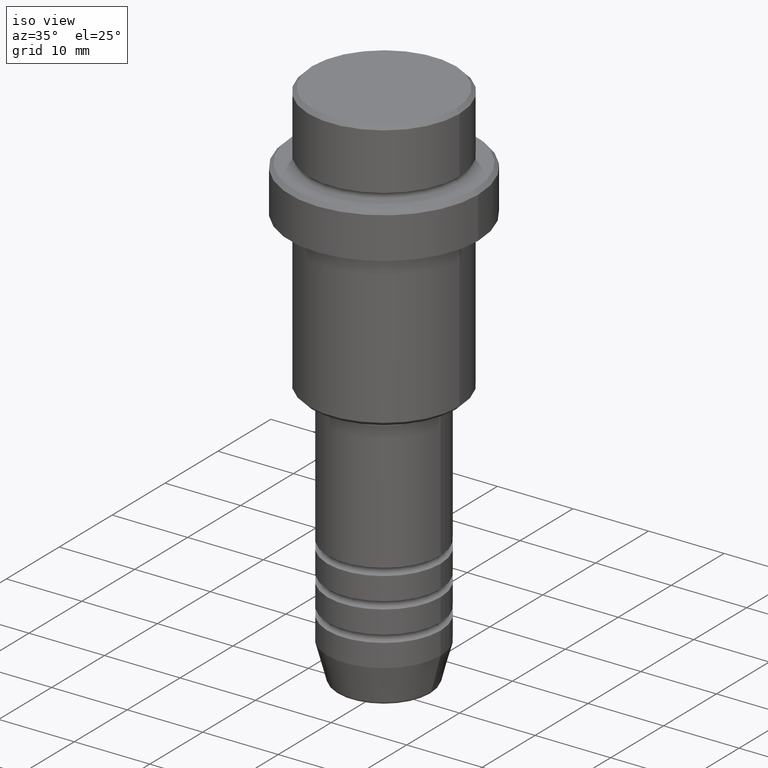
[diagram: clean part render]
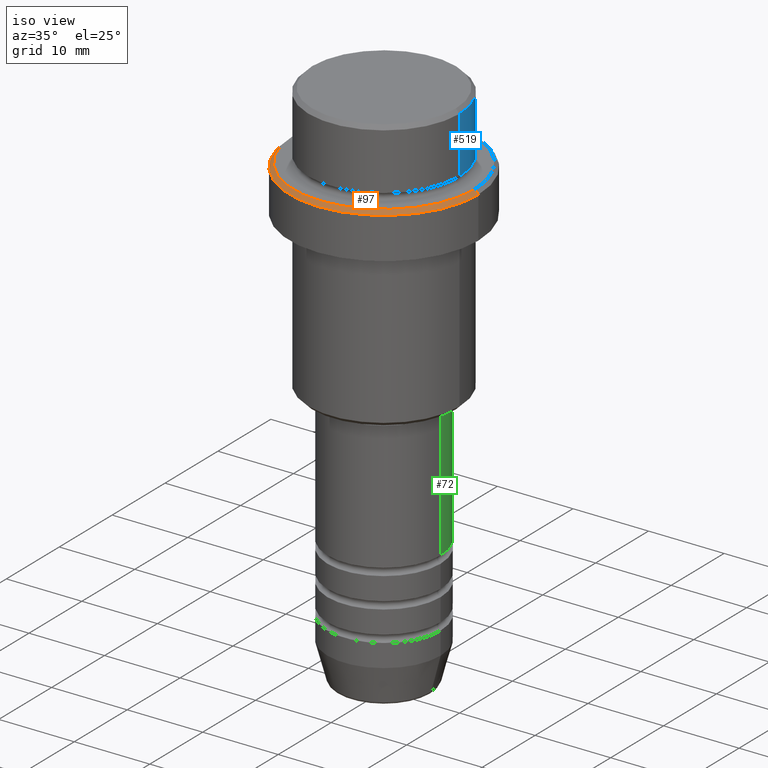
[diagram: same view with three faces highlighted in distinct colors, each labeled with its STEP entity id]
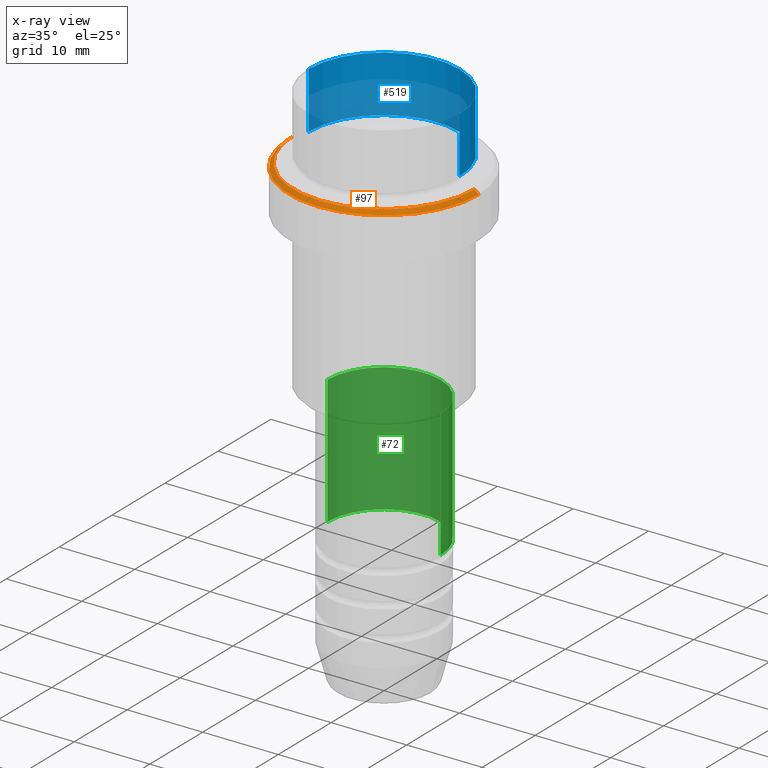
[diagram: x-ray of the same camera — body ghosted, the three highlighted faces saturated]
A machine part, iso view with three faces highlighted in distinct colors.
The next image is the same camera in x-ray (body ghosted, the three faces saturated) — at least one of them is partly hidden behind the body in this view.
Their STEP definitions:

[orange] entity #97 — the highlighted conical surface has half-angle 45 deg.
#39 = EDGE_CURVE ( 'NONE', #160, #218, #858, .T. ) ;
#53 = EDGE_CURVE ( 'NONE', #886, #160, #735, .T. ) ;
#71 = DIRECTION ( 'NONE',  ( 0.000000000000000000, 0.000000000000000000, -1.000000000000000000 ) ) ;
#77 = VECTOR ( 'NONE', #1231, 999.9999999999998863 ) ;
#97 = ADVANCED_FACE ( 'NONE', ( #730 ), #442, .T. ) ;
#119 = EDGE_CURVE ( 'NONE', #1072, #886, #1332, .T. ) ;
#160 = VERTEX_POINT ( 'NONE', #280 ) ;
#163 = AXIS2_PLACEMENT_3D ( 'NONE', #941, #619, #1372 ) ;
#188 = DIRECTION ( 'NONE',  ( 1.000000000000000000, 0.000000000000000000, 0.000000000000000000 ) ) ;
#218 = VERTEX_POINT ( 'NONE', #984 ) ;
#280 = CARTESIAN_POINT ( 'NONE',  ( 12.50000000000000000, 0.000000000000000000, -9.500000000000000000 ) ) ;
#298 = DIRECTION ( 'NONE',  ( -0.000000000000000000, -0.000000000000000000, 1.000000000000000000 ) ) ;
#310 = CARTESIAN_POINT ( 'NONE',  ( 12.00000000000000355, 1.469576158976824342E-15, -9.000000000000001776 ) ) ;
#352 = AXIS2_PLACEMENT_3D ( 'NONE', #1380, #298, #188 ) ;
#432 = EDGE_CURVE ( 'NONE', #1072, #218, #1006, .T. ) ;
#442 = CONICAL_SURFACE ( 'NONE', #163, 12.00000000000000355, 0.7853981633974465026 ) ;
#593 = CARTESIAN_POINT ( 'NONE',  ( 12.00000000000000355, 1.500192328955507734E-15, -9.000000000000001776 ) ) ;
#619 = DIRECTION ( 'NONE',  ( 0.000000000000000000, 0.000000000000000000, -1.000000000000000000 ) ) ;
#623 = DIRECTION ( 'NONE',  ( 1.000000000000000000, 0.000000000000000000, 0.000000000000000000 ) ) ;
#730 = FACE_OUTER_BOUND ( 'NONE', #945, .T. ) ;
#735 = LINE ( 'NONE', #310, #900 ) ;
#774 = ORIENTED_EDGE ( 'NONE', *, *, #119, .F. ) ;
#858 = CIRCLE ( 'NONE', #1356, 12.50000000000000000 ) ;
#886 = VERTEX_POINT ( 'NONE', #593 ) ;
#900 = VECTOR ( 'NONE', #1281, 999.9999999999998863 ) ;
#908 = CARTESIAN_POINT ( 'NONE',  ( -12.00000000000000355, 0.000000000000000000, -9.000000000000001776 ) ) ;
#941 = CARTESIAN_POINT ( 'NONE',  ( 0.000000000000000000, 0.000000000000000000, -9.000000000000001776 ) ) ;
#945 = EDGE_LOOP ( 'NONE', ( #1200, #774, #1344, #983 ) ) ;
#983 = ORIENTED_EDGE ( 'NONE', *, *, #39, .F. ) ;
#984 = CARTESIAN_POINT ( 'NONE',  ( -12.50000000000000000, 1.530808498934191521E-15, -9.500000000000000000 ) ) ;
#1006 = LINE ( 'NONE', #908, #77 ) ;
#1072 = VERTEX_POINT ( 'NONE', #1253 ) ;
#1151 = CARTESIAN_POINT ( 'NONE',  ( 0.000000000000000000, 0.000000000000000000, -9.500000000000000000 ) ) ;
#1200 = ORIENTED_EDGE ( 'NONE', *, *, #53, .F. ) ;
#1231 = DIRECTION ( 'NONE',  ( -0.7071067811865462405, 0.000000000000000000, -0.7071067811865489050 ) ) ;
#1253 = CARTESIAN_POINT ( 'NONE',  ( -12.00000000000000355, 0.000000000000000000, -9.000000000000001776 ) ) ;
#1281 = DIRECTION ( 'NONE',  ( 0.7071067811865462405, 8.659560562354918067E-17, -0.7071067811865489050 ) ) ;
#1332 = CIRCLE ( 'NONE', #352, 12.00000000000000355 ) ;
#1344 = ORIENTED_EDGE ( 'NONE', *, *, #432, .T. ) ;
#1356 = AXIS2_PLACEMENT_3D ( 'NONE', #1151, #71, #623 ) ;
#1372 = DIRECTION ( 'NONE',  ( -1.000000000000000000, 0.000000000000000000, 0.000000000000000000 ) ) ;
#1380 = CARTESIAN_POINT ( 'NONE',  ( 0.000000000000000000, 0.000000000000000000, -9.000000000000001776 ) ) ;

[blue] entity #519 — the highlighted cylindrical surface (partial cylindrical patch) has radius 10 mm, axis along (-0, -0, 1).
#10 = VECTOR ( 'NONE', #488, 1000.000000000000000 ) ;
#15 = EDGE_LOOP ( 'NONE', ( #1412, #831, #803, #1157 ) ) ;
#28 = VERTEX_POINT ( 'NONE', #389 ) ;
#41 = CARTESIAN_POINT ( 'NONE',  ( 9.999999999999998224, 0.000000000000000000, -7.999999999999998224 ) ) ;
#277 = DIRECTION ( 'NONE',  ( -0.000000000000000000, -0.000000000000000000, 1.000000000000000000 ) ) ;
#284 = CARTESIAN_POINT ( 'NONE',  ( 0.000000000000000000, 0.000000000000000000, 0.000000000000000000 ) ) ;
#316 = CIRCLE ( 'NONE', #1361, 9.999999999999998224 ) ;
#355 = AXIS2_PLACEMENT_3D ( 'NONE', #284, #277, #602 ) ;
#384 = AXIS2_PLACEMENT_3D ( 'NONE', #1310, #648, #625 ) ;
#389 = CARTESIAN_POINT ( 'NONE',  ( 9.999999999999998224, 0.000000000000000000, -0.5000000000000038858 ) ) ;
#472 = LINE ( 'NONE', #914, #608 ) ;
#488 = DIRECTION ( 'NONE',  ( -0.000000000000000000, -0.000000000000000000, 1.000000000000000000 ) ) ;
#499 = CARTESIAN_POINT ( 'NONE',  ( -9.999999999999998224, 1.224646799147353059E-15, 0.000000000000000000 ) ) ;
#519 = ADVANCED_FACE ( 'NONE', ( #1047 ), #1278, .T. ) ;
#569 = EDGE_CURVE ( 'NONE', #1259, #860, #933, .T. ) ;
#602 = DIRECTION ( 'NONE',  ( 1.000000000000000000, 0.000000000000000000, 0.000000000000000000 ) ) ;
#608 = VECTOR ( 'NONE', #695, 1000.000000000000000 ) ;
#625 = DIRECTION ( 'NONE',  ( 1.000000000000000000, 0.000000000000000000, 0.000000000000000000 ) ) ;
#648 = DIRECTION ( 'NONE',  ( -0.000000000000000000, -0.000000000000000000, 1.000000000000000000 ) ) ;
#695 = DIRECTION ( 'NONE',  ( -0.000000000000000000, -0.000000000000000000, 1.000000000000000000 ) ) ;
#797 = CARTESIAN_POINT ( 'NONE',  ( 0.000000000000000000, 0.000000000000000000, -0.5000000000000038858 ) ) ;
#803 = ORIENTED_EDGE ( 'NONE', *, *, #1093, .T. ) ;
#822 = DIRECTION ( 'NONE',  ( 0.000000000000000000, 0.000000000000000000, -1.000000000000000000 ) ) ;
#831 = ORIENTED_EDGE ( 'NONE', *, *, #569, .T. ) ;
#860 = VERTEX_POINT ( 'NONE', #1338 ) ;
#914 = CARTESIAN_POINT ( 'NONE',  ( 9.999999999999998224, 0.000000000000000000, 0.000000000000000000 ) ) ;
#933 = LINE ( 'NONE', #499, #10 ) ;
#1047 = FACE_OUTER_BOUND ( 'NONE', #15, .T. ) ;
#1048 = VERTEX_POINT ( 'NONE', #41 ) ;
#1087 = CARTESIAN_POINT ( 'NONE',  ( -9.999999999999998224, 1.224646799147353059E-15, -7.999999999999998224 ) ) ;
#1093 = EDGE_CURVE ( 'NONE', #860, #28, #316, .T. ) ;
#1157 = ORIENTED_EDGE ( 'NONE', *, *, #1187, .F. ) ;
#1187 = EDGE_CURVE ( 'NONE', #1048, #28, #472, .T. ) ;
#1222 = CIRCLE ( 'NONE', #384, 9.999999999999998224 ) ;
#1259 = VERTEX_POINT ( 'NONE', #1087 ) ;
#1278 = CYLINDRICAL_SURFACE ( 'NONE', #355, 9.999999999999998224 ) ;
#1288 = EDGE_CURVE ( 'NONE', #1048, #1259, #1222, .T. ) ;
#1310 = CARTESIAN_POINT ( 'NONE',  ( 0.000000000000000000, 0.000000000000000000, -7.999999999999998224 ) ) ;
#1338 = CARTESIAN_POINT ( 'NONE',  ( -9.999999999999998224, 1.224646799147353059E-15, -0.5000000000000038858 ) ) ;
#1353 = DIRECTION ( 'NONE',  ( 1.000000000000000000, 0.000000000000000000, 0.000000000000000000 ) ) ;
#1361 = AXIS2_PLACEMENT_3D ( 'NONE', #797, #822, #1353 ) ;
#1412 = ORIENTED_EDGE ( 'NONE', *, *, #1288, .T. ) ;

[green] entity #72 — the highlighted cylindrical surface (partial cylindrical patch) has radius 7.5 mm, axis along (-0, -0, 1).
#23 = CARTESIAN_POINT ( 'NONE',  ( -7.500000000000000000, 9.184850993605147944E-16, -37.00000000000000000 ) ) ;
#44 = VERTEX_POINT ( 'NONE', #1049 ) ;
#72 = ADVANCED_FACE ( 'NONE', ( #502 ), #846, .T. ) ;
#131 = ORIENTED_EDGE ( 'NONE', *, *, #880, .T. ) ;
#139 = CARTESIAN_POINT ( 'NONE',  ( 0.000000000000000000, 0.000000000000000000, -53.99999999999988631 ) ) ;
#153 = DIRECTION ( 'NONE',  ( -0.000000000000000000, -0.000000000000000000, 1.000000000000000000 ) ) ;
#308 = EDGE_CURVE ( 'NONE', #1303, #849, #466, .T. ) ;
#346 = EDGE_CURVE ( 'NONE', #1303, #44, #1268, .T. ) ;
#348 = DIRECTION ( 'NONE',  ( -0.000000000000000000, -0.000000000000000000, 1.000000000000000000 ) ) ;
#416 = CARTESIAN_POINT ( 'NONE',  ( 0.000000000000000000, 0.000000000000000000, 0.000000000000000000 ) ) ;
#466 = LINE ( 'NONE', #566, #993 ) ;
#501 = ORIENTED_EDGE ( 'NONE', *, *, #308, .F. ) ;
#502 = FACE_OUTER_BOUND ( 'NONE', #622, .T. ) ;
#566 = CARTESIAN_POINT ( 'NONE',  ( 7.500000000000000000, 0.000000000000000000, 0.000000000000000000 ) ) ;
#622 = EDGE_LOOP ( 'NONE', ( #1366, #131, #1117, #501 ) ) ;
#667 = DIRECTION ( 'NONE',  ( 1.000000000000000000, 0.000000000000000000, 0.000000000000000000 ) ) ;
#688 = EDGE_CURVE ( 'NONE', #849, #961, #1085, .T. ) ;
#789 = VECTOR ( 'NONE', #153, 1000.000000000000000 ) ;
#826 = DIRECTION ( 'NONE',  ( -0.000000000000000000, -0.000000000000000000, 1.000000000000000000 ) ) ;
#846 = CYLINDRICAL_SURFACE ( 'NONE', #927, 7.500000000000000000 ) ;
#849 = VERTEX_POINT ( 'NONE', #1352 ) ;
#880 = EDGE_CURVE ( 'NONE', #44, #961, #1035, .T. ) ;
#927 = AXIS2_PLACEMENT_3D ( 'NONE', #416, #826, #1389 ) ;
#961 = VERTEX_POINT ( 'NONE', #23 ) ;
#993 = VECTOR ( 'NONE', #348, 1000.000000000000000 ) ;
#1000 = DIRECTION ( 'NONE',  ( 1.000000000000000000, 0.000000000000000000, 0.000000000000000000 ) ) ;
#1024 = DIRECTION ( 'NONE',  ( -0.000000000000000000, -0.000000000000000000, 1.000000000000000000 ) ) ;
#1035 = LINE ( 'NONE', #1137, #789 ) ;
#1049 = CARTESIAN_POINT ( 'NONE',  ( -7.500000000000000000, 9.184850993605147944E-16, -53.99999999999988631 ) ) ;
#1068 = DIRECTION ( 'NONE',  ( -0.000000000000000000, -0.000000000000000000, 1.000000000000000000 ) ) ;
#1082 = AXIS2_PLACEMENT_3D ( 'NONE', #139, #1024, #1000 ) ;
#1085 = CIRCLE ( 'NONE', #1383, 7.500000000000000000 ) ;
#1115 = CARTESIAN_POINT ( 'NONE',  ( 0.000000000000000000, 0.000000000000000000, -37.00000000000000000 ) ) ;
#1117 = ORIENTED_EDGE ( 'NONE', *, *, #688, .F. ) ;
#1137 = CARTESIAN_POINT ( 'NONE',  ( -7.500000000000000000, 9.184850993605147944E-16, 0.000000000000000000 ) ) ;
#1204 = CARTESIAN_POINT ( 'NONE',  ( 7.500000000000000000, 0.000000000000000000, -53.99999999999988631 ) ) ;
#1268 = CIRCLE ( 'NONE', #1082, 7.500000000000000000 ) ;
#1303 = VERTEX_POINT ( 'NONE', #1204 ) ;
#1352 = CARTESIAN_POINT ( 'NONE',  ( 7.500000000000000000, 0.000000000000000000, -37.00000000000000000 ) ) ;
#1366 = ORIENTED_EDGE ( 'NONE', *, *, #346, .T. ) ;
#1383 = AXIS2_PLACEMENT_3D ( 'NONE', #1115, #1068, #667 ) ;
#1389 = DIRECTION ( 'NONE',  ( 1.000000000000000000, 0.000000000000000000, 0.000000000000000000 ) ) ;